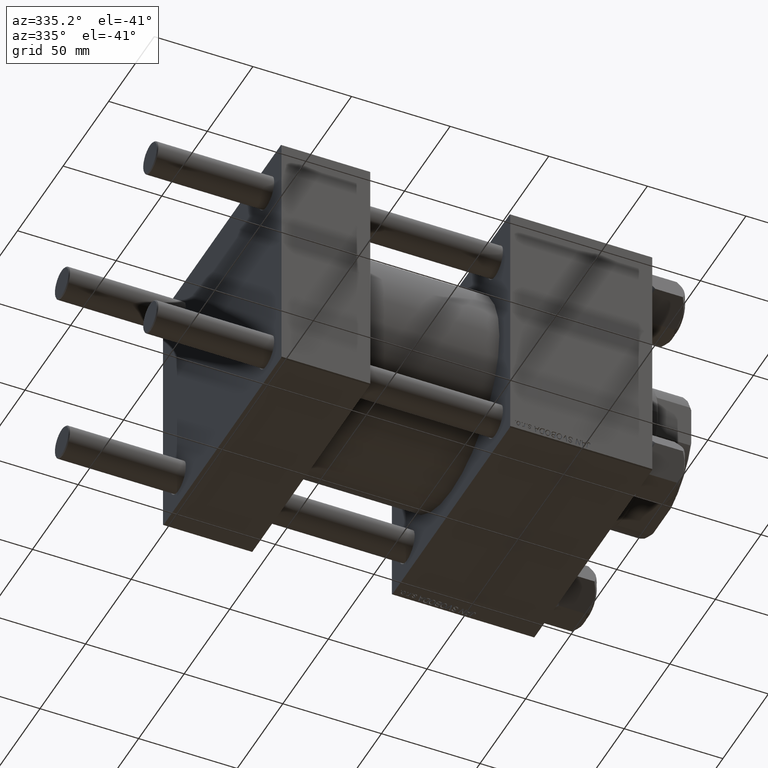
[diagram: clean part render]
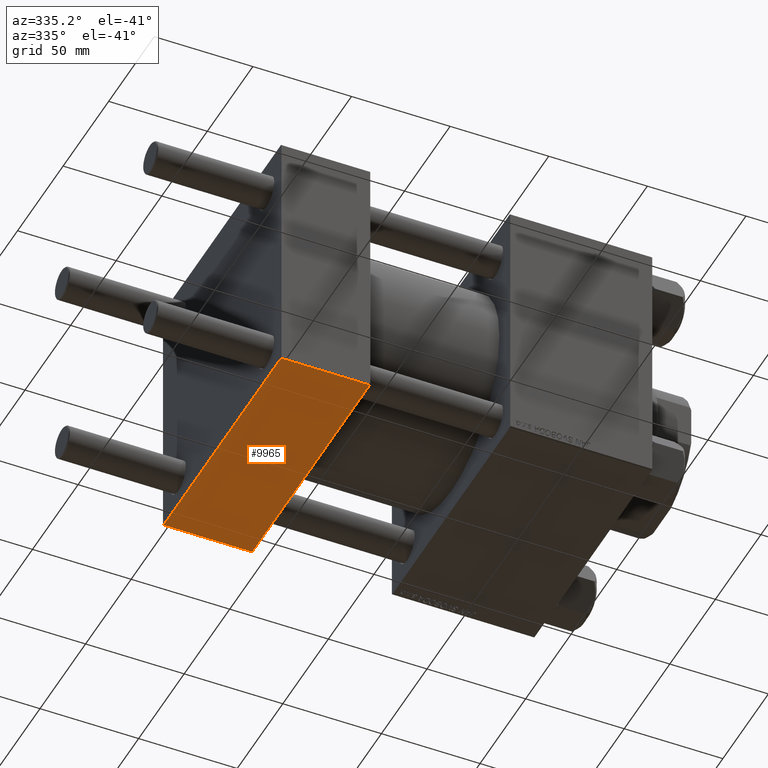
[diagram: same view with one face highlighted and labeled with its STEP entity id]
A machine part, auxiliary view. The second image highlights one B-rep face of the part: STEP entity #9965.
In plain terms, the highlighted planar face has unit normal (0, 0, -1).
Its self-contained STEP definition (entity closure, byte-faithful):
#2671 = EDGE_CURVE ( 'NONE', #35923, #27587, #48629, .T. ) ;
#4472 = LINE ( 'NONE', #12389, #38032 ) ;
#5540 = LINE ( 'NONE', #43807, #29165 ) ;
#6577 = LINE ( 'NONE', #13722, #20696 ) ;
#9208 = EDGE_LOOP ( 'NONE', ( #29550, #13985, #38701, #34675 ) ) ;
#9965 = ADVANCED_FACE ( 'NONE', ( #38600 ), #50094, .T. ) ;
#10836 = EDGE_CURVE ( 'NONE', #37471, #48897, #6577, .T. ) ;
#12389 = CARTESIAN_POINT ( 'NONE',  ( 0.000000000000000000, 65.00000000000000000, -64.99999999999998579 ) ) ;
#13722 = CARTESIAN_POINT ( 'NONE',  ( 45.00000000000000000, 64.49999999999997158, -64.99999999999998579 ) ) ;
#13985 = ORIENTED_EDGE ( 'NONE', *, *, #10836, .T. ) ;
#14461 = CARTESIAN_POINT ( 'NONE',  ( 0.000000000000000000, -64.49999999999994316, -65.00000000000000000 ) ) ;
#19531 = DIRECTION ( 'NONE',  ( 0.000000000000000000, -1.000000000000000000, -1.067522139062650425E-16 ) ) ;
#20696 = VECTOR ( 'NONE', #37665, 1000.000000000000000 ) ;
#24589 = EDGE_CURVE ( 'NONE', #48897, #35923, #5540, .T. ) ;
#25057 = CARTESIAN_POINT ( 'NONE',  ( 45.00000000000000000, -64.49999999999994316, -65.00000000000000000 ) ) ;
#27520 = CARTESIAN_POINT ( 'NONE',  ( 0.000000000000000000, 64.49999999999997158, -64.99999999999998579 ) ) ;
#27587 = VERTEX_POINT ( 'NONE', #45694 ) ;
#29165 = VECTOR ( 'NONE', #36142, 1000.000000000000000 ) ;
#29550 = ORIENTED_EDGE ( 'NONE', *, *, #45788, .F. ) ;
#34675 = ORIENTED_EDGE ( 'NONE', *, *, #2671, .T. ) ;
#34776 = CARTESIAN_POINT ( 'NONE',  ( 45.00000000000000000, 65.00000000000000000, -64.99999999999998579 ) ) ;
#35923 = VERTEX_POINT ( 'NONE', #25057 ) ;
#36142 = DIRECTION ( 'NONE',  ( 0.000000000000000000, -1.000000000000000000, -1.067522139062650425E-16 ) ) ;
#37471 = VERTEX_POINT ( 'NONE', #27520 ) ;
#37665 = DIRECTION ( 'NONE',  ( 1.000000000000000000, 0.000000000000000000, 0.000000000000000000 ) ) ;
#38032 = VECTOR ( 'NONE', #19531, 1000.000000000000000 ) ;
#38353 = DIRECTION ( 'NONE',  ( 0.000000000000000000, 1.000000000000000000, 1.067522139062650548E-16 ) ) ;
#38600 = FACE_OUTER_BOUND ( 'NONE', #9208, .T. ) ;
#38701 = ORIENTED_EDGE ( 'NONE', *, *, #24589, .T. ) ;
#41679 = DIRECTION ( 'NONE',  ( 0.000000000000000000, 1.067522139062650548E-16, -1.000000000000000000 ) ) ;
#43807 = CARTESIAN_POINT ( 'NONE',  ( 45.00000000000000000, 65.00000000000000000, -64.99999999999998579 ) ) ;
#44311 = AXIS2_PLACEMENT_3D ( 'NONE', #34776, #41679, #38353 ) ;
#45694 = CARTESIAN_POINT ( 'NONE',  ( 0.000000000000000000, -64.49999999999994316, -65.00000000000000000 ) ) ;
#45788 = EDGE_CURVE ( 'NONE', #37471, #27587, #4472, .T. ) ;
#46280 = CARTESIAN_POINT ( 'NONE',  ( 45.00000000000000000, 64.49999999999997158, -64.99999999999998579 ) ) ;
#48629 = LINE ( 'NONE', #14461, #49558 ) ;
#48888 = DIRECTION ( 'NONE',  ( -1.000000000000000000, 0.000000000000000000, 0.000000000000000000 ) ) ;
#48897 = VERTEX_POINT ( 'NONE', #46280 ) ;
#49558 = VECTOR ( 'NONE', #48888, 1000.000000000000000 ) ;
#50094 = PLANE ( 'NONE',  #44311 ) ;